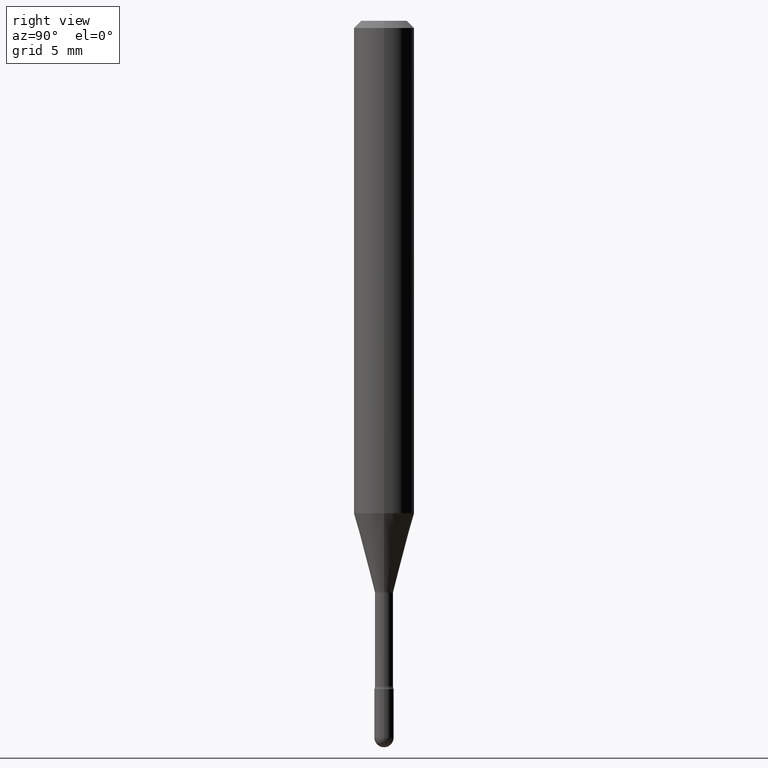
[diagram: clean part render]
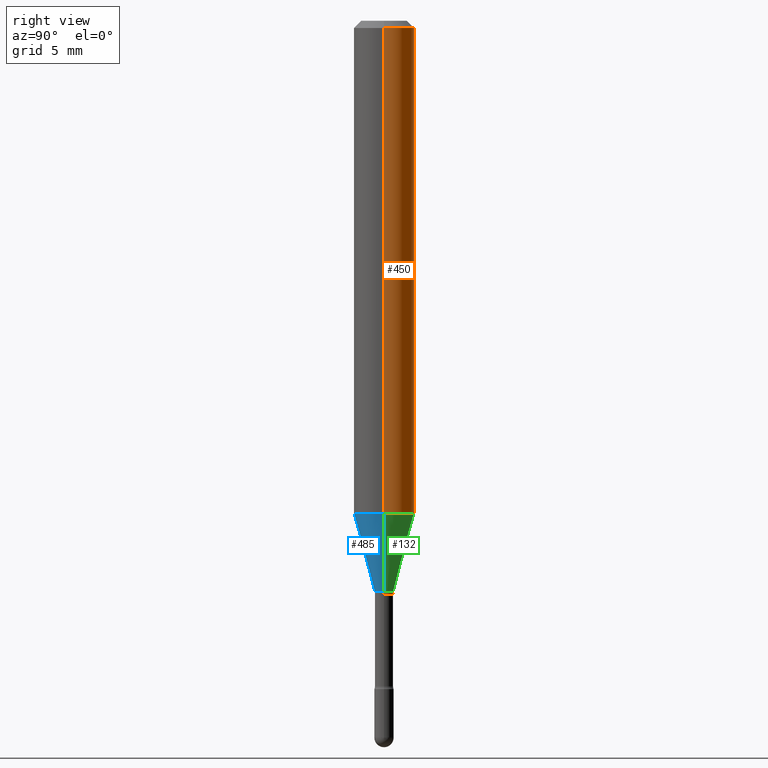
[diagram: same view with three faces highlighted in distinct colors, each labeled with its STEP entity id]
A machine part, right view with three faces highlighted in distinct colors.
Their STEP definitions:

[orange] entity #450 — the highlighted cylindrical surface (edge-blend (fillet) strip) has radius 1.5875 mm, axis along (-0, 0, 1).
#6 = DIRECTION ( 'NONE',  ( -2.445468806185136597E-29, 3.491481338843145583E-15, 1.000000000000000000 ) ) ;
#8 = EDGE_CURVE ( 'NONE', #160, #27, #496, .T. ) ;
#27 = VERTEX_POINT ( 'NONE', #143 ) ;
#45 = CIRCLE ( 'NONE', #498, 0.06250000000000000000 ) ;
#53 = CARTESIAN_POINT ( 'NONE',  ( -0.06250000000000000000, -3.106430912699308178E-15, -1.016909379709240335 ) ) ;
#66 = CARTESIAN_POINT ( 'NONE',  ( 2.486820166796023749E-29, -3.550520122549371189E-15, -1.016909379709240335 ) ) ;
#97 = DIRECTION ( 'NONE',  ( -2.445468806185136597E-29, 3.491481338843145583E-15, 1.000000000000000000 ) ) ;
#100 = CARTESIAN_POINT ( 'NONE',  ( -0.06250000000000000000, 4.440892098500642925E-16, 4.780733988912429571E-16 ) ) ;
#128 = CARTESIAN_POINT ( 'NONE',  ( -1.169113584055446105E-44, 1.669184350826100908E-30, 4.780733988912460139E-16 ) ) ;
#136 = FACE_OUTER_BOUND ( 'NONE', #388, .T. ) ;
#143 = CARTESIAN_POINT ( 'NONE',  ( 0.06250000000000000000, -4.888073874380391431E-16, -0.01500000000000008271 ) ) ;
#144 = EDGE_CURVE ( 'NONE', #160, #533, #483, .T. ) ;
#160 = VERTEX_POINT ( 'NONE', #467 ) ;
#165 = EDGE_CURVE ( 'NONE', #27, #303, #45, .T. ) ;
#212 = AXIS2_PLACEMENT_3D ( 'NONE', #66, #97, #330 ) ;
#225 = ORIENTED_EDGE ( 'NONE', *, *, #427, .T. ) ;
#242 = DIRECTION ( 'NONE',  ( -2.445468806185136597E-29, 3.491481338843145583E-15, 1.000000000000000000 ) ) ;
#271 = VECTOR ( 'NONE', #453, 39.37007874015748143 ) ;
#272 = DIRECTION ( 'NONE',  ( 1.000000000000000000, -6.982962677686266711E-15, 4.852736867747366207E-29 ) ) ;
#282 = AXIS2_PLACEMENT_3D ( 'NONE', #128, #6, #272 ) ;
#294 = ORIENTED_EDGE ( 'NONE', *, *, #165, .F. ) ;
#303 = VERTEX_POINT ( 'NONE', #359 ) ;
#330 = DIRECTION ( 'NONE',  ( 1.000000000000000000, -6.982962677686270655E-15, 0.000000000000000000 ) ) ;
#355 = VECTOR ( 'NONE', #466, 39.37007874015748143 ) ;
#356 = CARTESIAN_POINT ( 'NONE',  ( 0.06250000000000000000, -4.364351673553899931E-16, 4.780733988912490708E-16 ) ) ;
#359 = CARTESIAN_POINT ( 'NONE',  ( -0.06250000000000000000, -1.357356961465946715E-15, -0.01500000000000008271 ) ) ;
#381 = DIRECTION ( 'NONE',  ( 1.000000000000000000, -6.982962677686266711E-15, 0.000000000000000000 ) ) ;
#384 = LINE ( 'NONE', #100, #355 ) ;
#388 = EDGE_LOOP ( 'NONE', ( #549, #225, #294, #473 ) ) ;
#399 = CYLINDRICAL_SURFACE ( 'NONE', #282, 0.06250000000000000000 ) ;
#427 = EDGE_CURVE ( 'NONE', #533, #303, #384, .T. ) ;
#450 = ADVANCED_FACE ( 'NONE', ( #136 ), #399, .T. ) ;
#453 = DIRECTION ( 'NONE',  ( -2.445468806185136877E-29, 3.491481338843145188E-15, 1.000000000000000000 ) ) ;
#466 = DIRECTION ( 'NONE',  ( -2.445468806185136877E-29, 3.491481338843145188E-15, 1.000000000000000000 ) ) ;
#467 = CARTESIAN_POINT ( 'NONE',  ( 0.06250000000000000000, -3.986955289904762858E-15, -1.016909379709240335 ) ) ;
#473 = ORIENTED_EDGE ( 'NONE', *, *, #8, .F. ) ;
#483 = CIRCLE ( 'NONE', #212, 0.06250000000000000000 ) ;
#496 = LINE ( 'NONE', #356, #271 ) ;
#498 = AXIS2_PLACEMENT_3D ( 'NONE', #541, #242, #381 ) ;
#533 = VERTEX_POINT ( 'NONE', #53 ) ;
#541 = CARTESIAN_POINT ( 'NONE',  ( 3.668203209277725232E-31, -5.237222008264747365E-17, -0.01500000000000008271 ) ) ;
#549 = ORIENTED_EDGE ( 'NONE', *, *, #144, .T. ) ;

[blue] entity #485 — the highlighted conical surface has half-angle 15 deg.
#4 = DIRECTION ( 'NONE',  ( -0.2588190451025211281, 5.211531920934548675E-15, 0.9659258262890682012 ) ) ;
#12 = ORIENTED_EDGE ( 'NONE', *, *, #63, .T. ) ;
#43 = DIRECTION ( 'NONE',  ( 1.000000000000000000, -6.982962677686261977E-15, 0.000000000000000000 ) ) ;
#52 = AXIS2_PLACEMENT_3D ( 'NONE', #84, #451, #43 ) ;
#53 = CARTESIAN_POINT ( 'NONE',  ( -0.06250000000000000000, -3.106430912699308178E-15, -1.016909379709240335 ) ) ;
#54 = DIRECTION ( 'NONE',  ( 0.2588190451025211281, 1.565188264969623940E-15, 0.9659258262890682012 ) ) ;
#55 = CARTESIAN_POINT ( 'NONE',  ( 2.880988463921383680E-29, -4.113287985421298854E-15, -1.178092501787272983 ) ) ;
#63 = EDGE_CURVE ( 'NONE', #437, #432, #306, .T. ) ;
#84 = CARTESIAN_POINT ( 'NONE',  ( 2.880988463921383680E-29, -4.113287985421298854E-15, -1.178092501787272983 ) ) ;
#121 = AXIS2_PLACEMENT_3D ( 'NONE', #55, #317, #233 ) ;
#130 = CARTESIAN_POINT ( 'NONE',  ( 0.01931111260566397911, -4.248136764011247491E-15, -1.178092501787272983 ) ) ;
#138 = EDGE_CURVE ( 'NONE', #533, #160, #237, .T. ) ;
#149 = DIRECTION ( 'NONE',  ( -2.445468806185136597E-29, 3.491481338843145583E-15, 1.000000000000000000 ) ) ;
#160 = VERTEX_POINT ( 'NONE', #467 ) ;
#173 = CARTESIAN_POINT ( 'NONE',  ( -0.01931111260566397911, -3.541252595153304499E-15, -1.178092501787272983 ) ) ;
#184 = LINE ( 'NONE', #276, #529 ) ;
#230 = ORIENTED_EDGE ( 'NONE', *, *, #499, .F. ) ;
#233 = DIRECTION ( 'NONE',  ( 1.000000000000000000, -6.982962677686261977E-15, 0.000000000000000000 ) ) ;
#237 = CIRCLE ( 'NONE', #252, 0.06250000000000000000 ) ;
#252 = AXIS2_PLACEMENT_3D ( 'NONE', #337, #149, #552 ) ;
#264 = ORIENTED_EDGE ( 'NONE', *, *, #304, .T. ) ;
#275 = CARTESIAN_POINT ( 'NONE',  ( 0.01931111260566397911, -4.248136764011247491E-15, -1.178092501787272983 ) ) ;
#276 = CARTESIAN_POINT ( 'NONE',  ( -0.01931111260566397911, -3.976074277607301213E-15, -1.178092501787272983 ) ) ;
#304 = EDGE_CURVE ( 'NONE', #432, #160, #459, .T. ) ;
#306 = CIRCLE ( 'NONE', #121, 0.01931111260566397911 ) ;
#308 = CONICAL_SURFACE ( 'NONE', #52, 0.01931111260566397911, 0.2617993877991497964 ) ;
#317 = DIRECTION ( 'NONE',  ( -2.445468806185136597E-29, 3.491481338843145583E-15, 1.000000000000000000 ) ) ;
#337 = CARTESIAN_POINT ( 'NONE',  ( 2.486820166796023749E-29, -3.550520122549371189E-15, -1.016909379709240335 ) ) ;
#342 = EDGE_LOOP ( 'NONE', ( #230, #12, #264, #479 ) ) ;
#361 = VECTOR ( 'NONE', #54, 39.37007874015748143 ) ;
#432 = VERTEX_POINT ( 'NONE', #130 ) ;
#437 = VERTEX_POINT ( 'NONE', #173 ) ;
#451 = DIRECTION ( 'NONE',  ( -2.445468806185136597E-29, 3.491481338843145583E-15, 1.000000000000000000 ) ) ;
#459 = LINE ( 'NONE', #275, #361 ) ;
#467 = CARTESIAN_POINT ( 'NONE',  ( 0.06250000000000000000, -3.986955289904762858E-15, -1.016909379709240335 ) ) ;
#479 = ORIENTED_EDGE ( 'NONE', *, *, #138, .F. ) ;
#485 = ADVANCED_FACE ( 'NONE', ( #488 ), #308, .T. ) ;
#488 = FACE_OUTER_BOUND ( 'NONE', #342, .T. ) ;
#499 = EDGE_CURVE ( 'NONE', #437, #533, #184, .T. ) ;
#529 = VECTOR ( 'NONE', #4, 39.37007874015748143 ) ;
#533 = VERTEX_POINT ( 'NONE', #53 ) ;
#552 = DIRECTION ( 'NONE',  ( 1.000000000000000000, -6.982962677686270655E-15, 0.000000000000000000 ) ) ;

[green] entity #132 — the highlighted conical surface has half-angle 15 deg.
#4 = DIRECTION ( 'NONE',  ( -0.2588190451025211281, 5.211531920934548675E-15, 0.9659258262890682012 ) ) ;
#34 = EDGE_LOOP ( 'NONE', ( #545, #524, #340, #247 ) ) ;
#53 = CARTESIAN_POINT ( 'NONE',  ( -0.06250000000000000000, -3.106430912699308178E-15, -1.016909379709240335 ) ) ;
#54 = DIRECTION ( 'NONE',  ( 0.2588190451025211281, 1.565188264969623940E-15, 0.9659258262890682012 ) ) ;
#66 = CARTESIAN_POINT ( 'NONE',  ( 2.486820166796023749E-29, -3.550520122549371189E-15, -1.016909379709240335 ) ) ;
#97 = DIRECTION ( 'NONE',  ( -2.445468806185136597E-29, 3.491481338843145583E-15, 1.000000000000000000 ) ) ;
#126 = DIRECTION ( 'NONE',  ( -2.445468806185136597E-29, 3.491481338843145583E-15, 1.000000000000000000 ) ) ;
#130 = CARTESIAN_POINT ( 'NONE',  ( 0.01931111260566397911, -4.248136764011247491E-15, -1.178092501787272983 ) ) ;
#132 = ADVANCED_FACE ( 'NONE', ( #468 ), #546, .T. ) ;
#144 = EDGE_CURVE ( 'NONE', #160, #533, #483, .T. ) ;
#154 = CIRCLE ( 'NONE', #172, 0.01931111260566397911 ) ;
#160 = VERTEX_POINT ( 'NONE', #467 ) ;
#172 = AXIS2_PLACEMENT_3D ( 'NONE', #526, #126, #312 ) ;
#173 = CARTESIAN_POINT ( 'NONE',  ( -0.01931111260566397911, -3.541252595153304499E-15, -1.178092501787272983 ) ) ;
#184 = LINE ( 'NONE', #276, #529 ) ;
#202 = DIRECTION ( 'NONE',  ( -2.445468806185136597E-29, 3.491481338843145583E-15, 1.000000000000000000 ) ) ;
#212 = AXIS2_PLACEMENT_3D ( 'NONE', #66, #97, #330 ) ;
#247 = ORIENTED_EDGE ( 'NONE', *, *, #304, .F. ) ;
#263 = EDGE_CURVE ( 'NONE', #432, #437, #154, .T. ) ;
#275 = CARTESIAN_POINT ( 'NONE',  ( 0.01931111260566397911, -4.248136764011247491E-15, -1.178092501787272983 ) ) ;
#276 = CARTESIAN_POINT ( 'NONE',  ( -0.01931111260566397911, -3.976074277607301213E-15, -1.178092501787272983 ) ) ;
#304 = EDGE_CURVE ( 'NONE', #432, #160, #459, .T. ) ;
#312 = DIRECTION ( 'NONE',  ( 1.000000000000000000, -6.982962677686261977E-15, 0.000000000000000000 ) ) ;
#330 = DIRECTION ( 'NONE',  ( 1.000000000000000000, -6.982962677686270655E-15, 0.000000000000000000 ) ) ;
#340 = ORIENTED_EDGE ( 'NONE', *, *, #144, .F. ) ;
#361 = VECTOR ( 'NONE', #54, 39.37007874015748143 ) ;
#369 = CARTESIAN_POINT ( 'NONE',  ( 2.880988463921383680E-29, -4.113287985421298854E-15, -1.178092501787272983 ) ) ;
#387 = DIRECTION ( 'NONE',  ( 1.000000000000000000, -6.982962677686261977E-15, 0.000000000000000000 ) ) ;
#432 = VERTEX_POINT ( 'NONE', #130 ) ;
#437 = VERTEX_POINT ( 'NONE', #173 ) ;
#459 = LINE ( 'NONE', #275, #361 ) ;
#467 = CARTESIAN_POINT ( 'NONE',  ( 0.06250000000000000000, -3.986955289904762858E-15, -1.016909379709240335 ) ) ;
#468 = FACE_OUTER_BOUND ( 'NONE', #34, .T. ) ;
#483 = CIRCLE ( 'NONE', #212, 0.06250000000000000000 ) ;
#491 = AXIS2_PLACEMENT_3D ( 'NONE', #369, #202, #387 ) ;
#499 = EDGE_CURVE ( 'NONE', #437, #533, #184, .T. ) ;
#524 = ORIENTED_EDGE ( 'NONE', *, *, #499, .T. ) ;
#526 = CARTESIAN_POINT ( 'NONE',  ( 2.880988463921383680E-29, -4.113287985421298854E-15, -1.178092501787272983 ) ) ;
#529 = VECTOR ( 'NONE', #4, 39.37007874015748143 ) ;
#533 = VERTEX_POINT ( 'NONE', #53 ) ;
#545 = ORIENTED_EDGE ( 'NONE', *, *, #263, .T. ) ;
#546 = CONICAL_SURFACE ( 'NONE', #491, 0.01931111260566397911, 0.2617993877991497964 ) ;